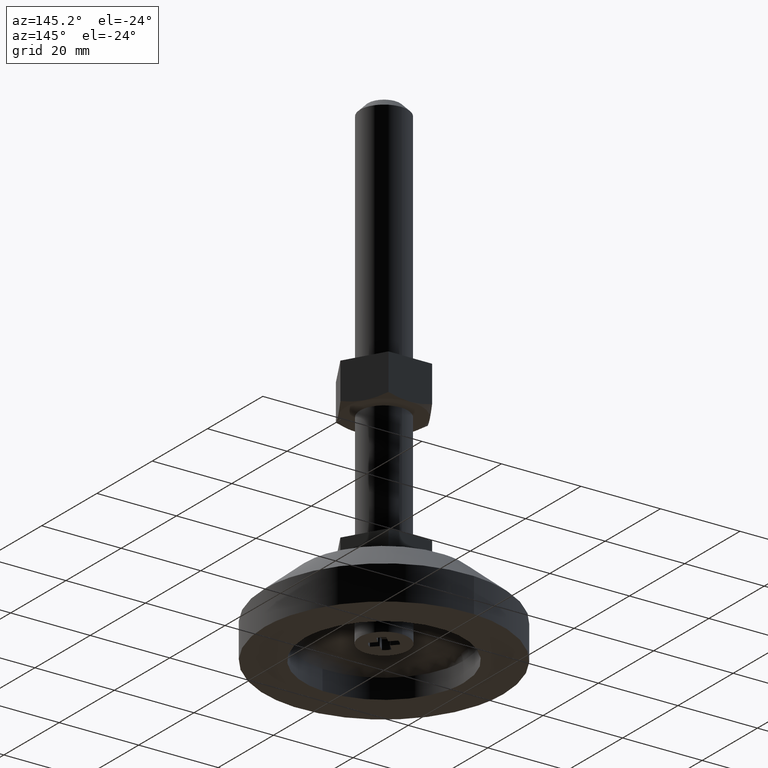
[diagram: clean part render]
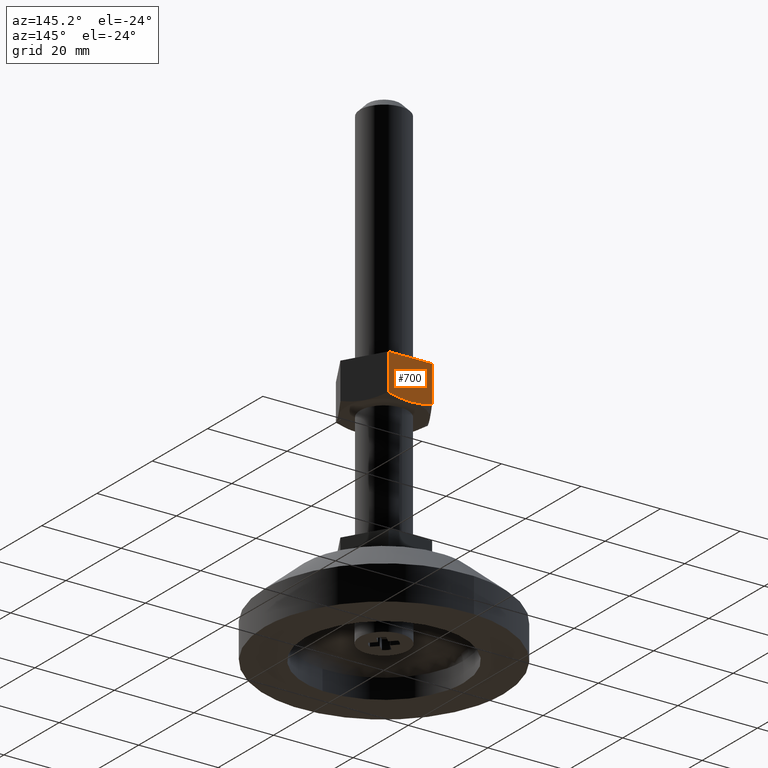
[diagram: same view with one face highlighted and labeled with its STEP entity id]
A machine part, auxiliary view. The second image highlights one B-rep face of the part: STEP entity #700.
In plain terms, the highlighted face is a freeform B-spline surface patch.
Its self-contained STEP definition (entity closure, byte-faithful):
#209=CARTESIAN_POINT('',(0.0,9.500000000000108,55.0));
#210=VERTEX_POINT('',#209);
#305=CARTESIAN_POINT('',(-5.484827000000000,9.500000000000108,55.848505520440000));
#306=VERTEX_POINT('',#305);
#307=CARTESIAN_POINT('',(0.0,9.500000000000108,55.0));
#308=CARTESIAN_POINT('',(-0.463059901053569,9.500000000000110,55.000000141574958));
#309=CARTESIAN_POINT('',(-0.924607508386937,9.500000000000108,55.019643318680920));
#310=CARTESIAN_POINT('',(-1.845391368718816,9.500000000000108,55.096321093360103));
#311=CARTESIAN_POINT('',(-2.304626240667703,9.500000000000108,55.153373629165813));
#312=CARTESIAN_POINT('',(-3.220513125358664,9.500000000000108,55.301027045514147));
#313=CARTESIAN_POINT('',(-3.677182193346568,9.500000000000110,55.391599214233622));
#314=CARTESIAN_POINT('',(-4.588252382822654,9.500000000000107,55.601429248809993));
#315=CARTESIAN_POINT('',(-5.038593894706943,9.500000000000108,55.719689128525253));
#316=CARTESIAN_POINT('',(-5.484827000000062,9.500000000000108,55.848505520439844));
#317=B_SPLINE_CURVE_WITH_KNOTS('',3,(#307,#308,#309,#310,#311,#312,#313,#314,#315,#316),.UNSPECIFIED.,.F.,.U.,(4,2,2,2,4),(0.0,0.124847026889257,0.249847026889257,0.374847026889257,0.499847026889257),.UNSPECIFIED.);
#318=EDGE_CURVE('',#210,#306,#317,.T.);
#351=CARTESIAN_POINT('',(5.484827999999999,9.500000000000108,55.848505809115203));
#352=VERTEX_POINT('',#351);
#367=CARTESIAN_POINT('',(5.484827999999999,9.500000000000108,55.848505809115203));
#368=CARTESIAN_POINT('',(4.598207278512692,9.500000000000108,55.592560437511452));
#369=CARTESIAN_POINT('',(3.700012399969614,9.500000000000110,55.379415474046013));
#370=CARTESIAN_POINT('',(2.555479663553178,9.500000000000110,55.193558950449621));
#371=CARTESIAN_POINT('',(2.210479156294845,9.500000000000108,55.143869134533396));
#372=CARTESIAN_POINT('',(1.862806757100880,9.500000000000107,55.104059784623928));
#373=CARTESIAN_POINT('',(1.630409215568172,9.500000000000108,55.079797927907109));
#374=CARTESIAN_POINT('',(1.513787472117696,9.500000000000110,55.068796713291697));
#375=CARTESIAN_POINT('',(0.930480828674588,9.500000000000107,55.019796064005881));
#376=CARTESIAN_POINT('',(0.465333138770773,9.500000000000107,55.000047954001801));
#377=CARTESIAN_POINT('',(0.001134762528054,9.500000000000108,54.999999934633472));
#378=CARTESIAN_POINT('',(0.000567380319485,9.500000000000108,54.999999905432077));
#379=CARTESIAN_POINT('',(3.813550E-010,9.500000000000108,54.999999905721047));
#380=B_SPLINE_CURVE_WITH_KNOTS('',3,(#367,#368,#369,#370,#371,#372,#373,#374,#375,#376,#377,#378,#379),.UNSPECIFIED.,.F.,.U.,(4,2,1,2,2,2,4),(0.499847026921942,0.749847026921942,0.812347026921942,0.843597026921942,0.874847026921942,0.999847026921942,1.000000000000000),.UNSPECIFIED.);
#381=EDGE_CURVE('',#352,#210,#380,.T.);
#601=CARTESIAN_POINT('',(5.484827999999999,9.500000000000108,65.0));
#602=VERTEX_POINT('',#601);
#608=CARTESIAN_POINT('',(-5.484827000000000,9.500000000000108,65.0));
#609=VERTEX_POINT('',#608);
#610=CARTESIAN_POINT('',(-5.484827000000000,9.500000000000108,65.0));
#611=CARTESIAN_POINT('',(5.484827999999999,9.500000000000108,65.0));
#612=QUASI_UNIFORM_CURVE('',1,(#610,#611),.UNSPECIFIED.,.F.,.U.);
#613=EDGE_CURVE('',#609,#602,#612,.T.);
#675=CARTESIAN_POINT('',(5.484827999999999,9.500000000000108,65.0));
#676=CARTESIAN_POINT('',(5.484827999999999,9.500000000000108,55.848505809115203));
#677=QUASI_UNIFORM_CURVE('',1,(#675,#676),.UNSPECIFIED.,.F.,.U.);
#678=EDGE_CURVE('',#602,#352,#677,.T.);
#684=CARTESIAN_POINT('',(-6.032761245988682,9.500000000000108,54.500500019381938));
#685=CARTESIAN_POINT('',(-6.032761245988682,9.500000000000108,65.499500248838970));
#686=CARTESIAN_POINT('',(6.032762540217756,9.500000000000108,54.500500019381938));
#687=CARTESIAN_POINT('',(6.032762540217756,9.500000000000108,65.499500248838970));
#688=B_SPLINE_SURFACE_WITH_KNOTS('',1,1,((#684,#686),(#685,#687)),.UNSPECIFIED.,.F.,.F.,.U.,(2,2),(2,2),(0.0,10.999000229457030),(0.0,12.065523786206439),.UNSPECIFIED.);
#689=ORIENTED_EDGE('',*,*,#678,.T.);
#690=ORIENTED_EDGE('',*,*,#381,.T.);
#691=ORIENTED_EDGE('',*,*,#318,.T.);
#692=CARTESIAN_POINT('',(-5.484827000000000,9.500000000000108,65.0));
#693=CARTESIAN_POINT('',(-5.484827000000000,9.500000000000108,55.848505520440000));
#694=QUASI_UNIFORM_CURVE('',1,(#692,#693),.UNSPECIFIED.,.F.,.U.);
#695=EDGE_CURVE('',#609,#306,#694,.T.);
#696=ORIENTED_EDGE('',*,*,#695,.F.);
#697=ORIENTED_EDGE('',*,*,#613,.T.);
#698=EDGE_LOOP('',(#689,#690,#691,#696,#697));
#699=FACE_OUTER_BOUND('',#698,.T.);
#700=ADVANCED_FACE('',(#699),#688,.T.);